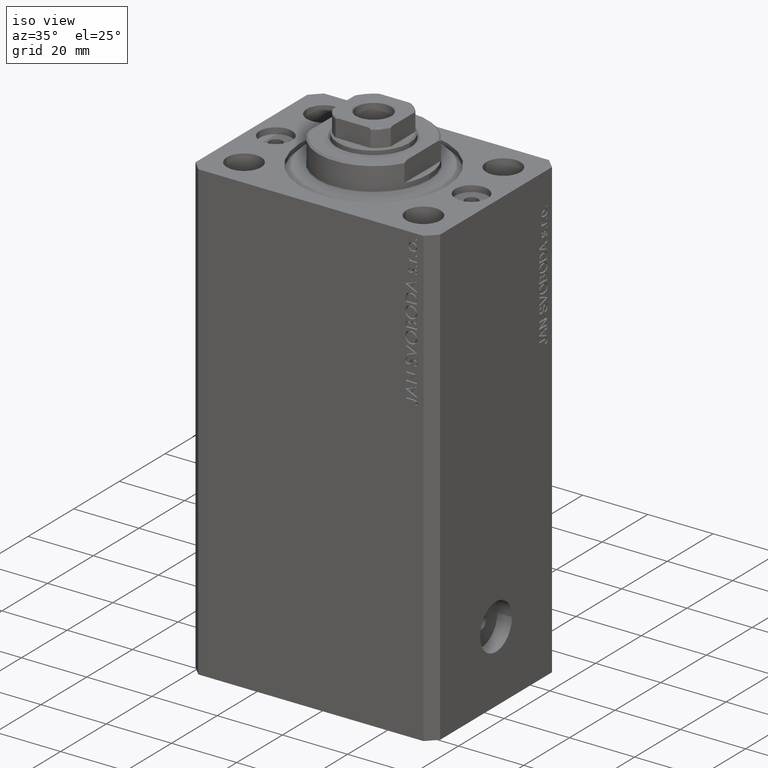
[diagram: clean part render]
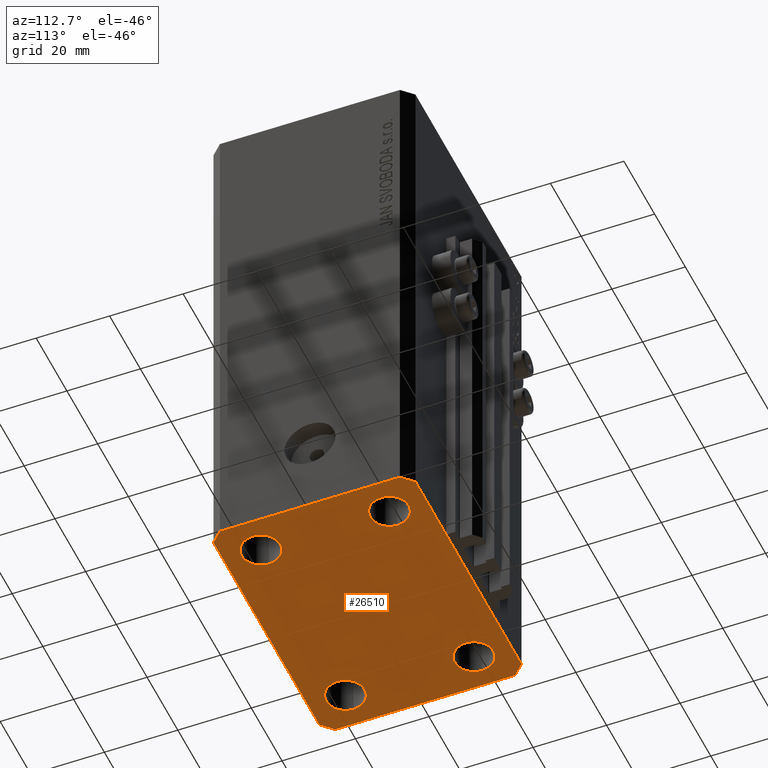
[diagram: tour spotlight — one face highlighted and labeled with its STEP entity id]
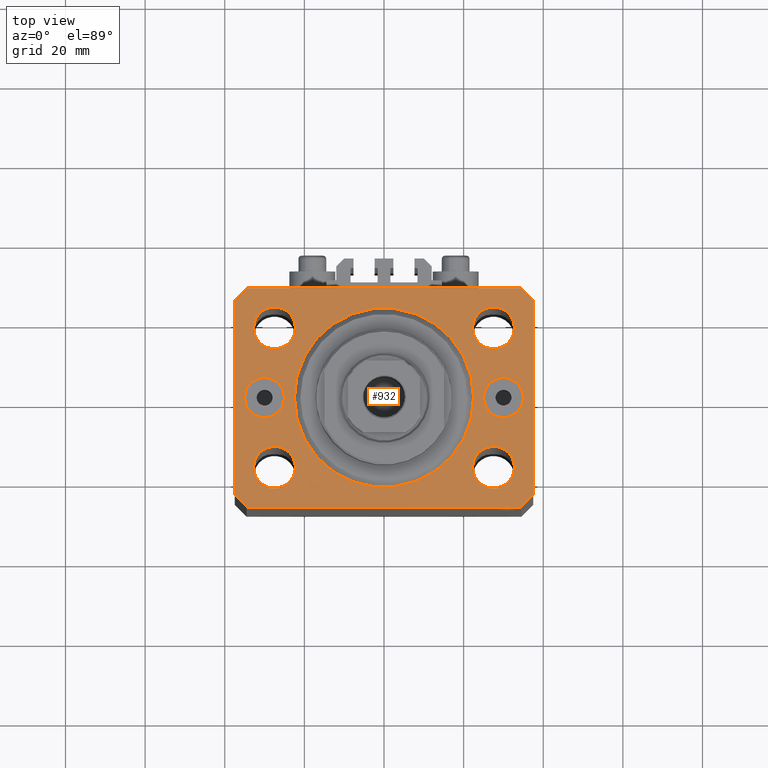
[diagram: tour spotlight — one face highlighted and labeled with its STEP entity id]
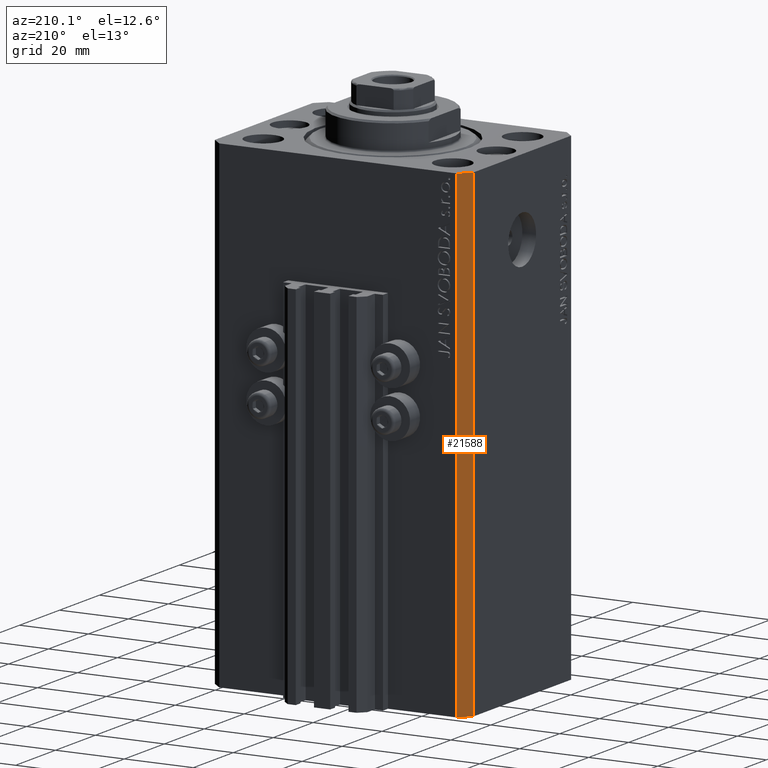
[diagram: tour spotlight — one face highlighted and labeled with its STEP entity id]
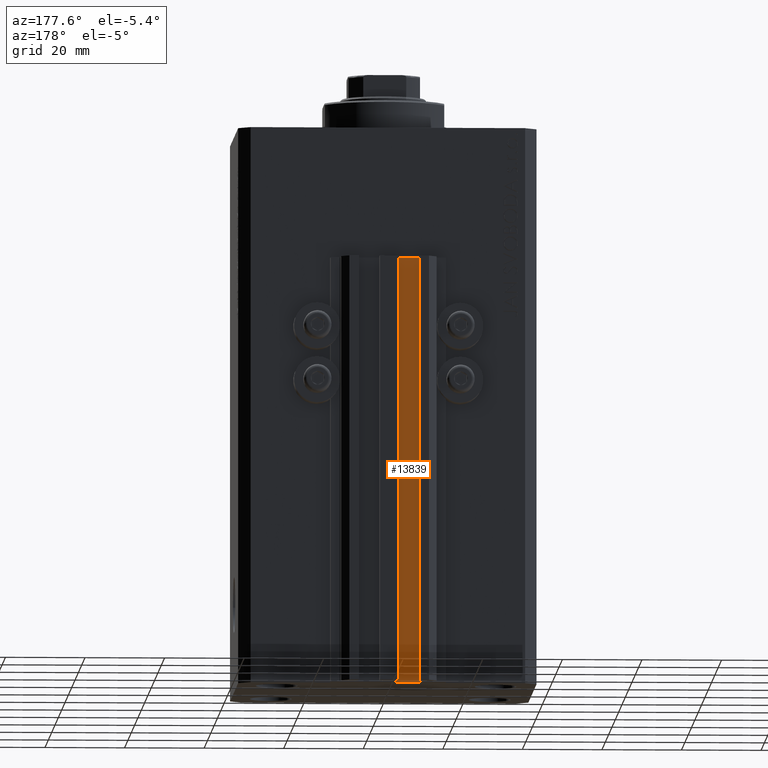
[diagram: tour spotlight — one face highlighted and labeled with its STEP entity id]
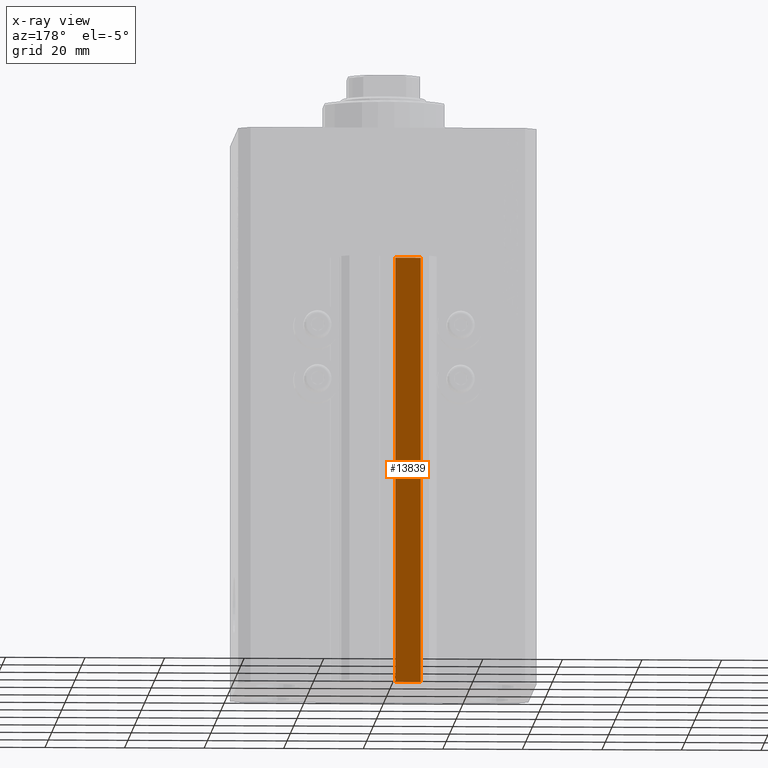
[diagram: x-ray of the same camera — body ghosted, this tour face saturated]
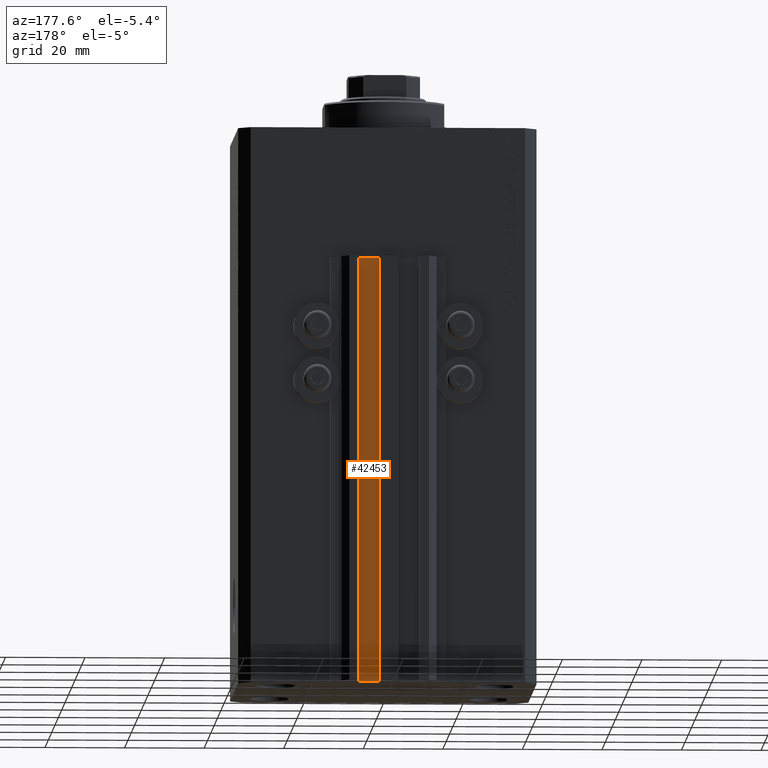
[diagram: tour spotlight — one face highlighted and labeled with its STEP entity id]
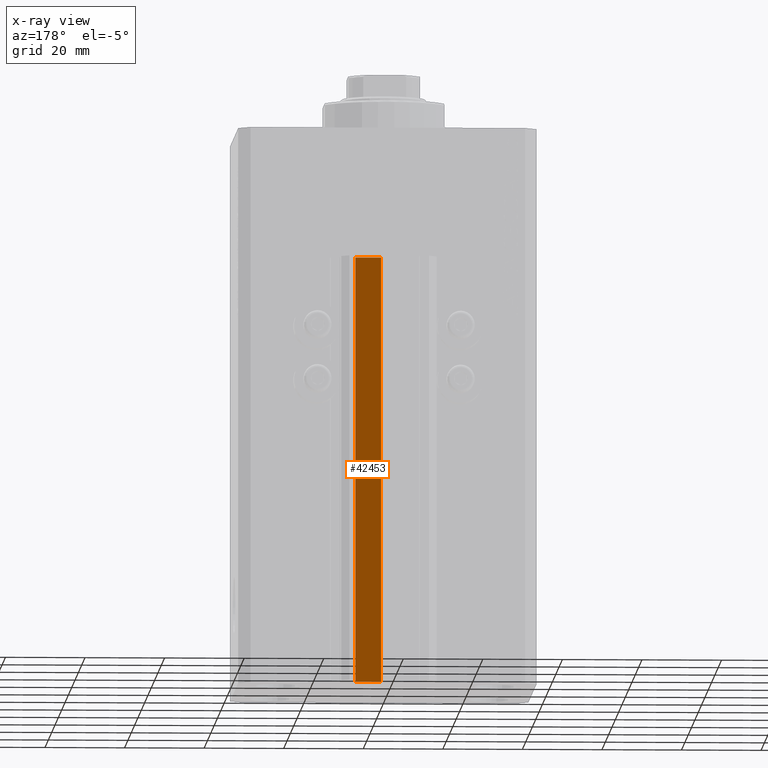
[diagram: x-ray of the same camera — body ghosted, this tour face saturated]
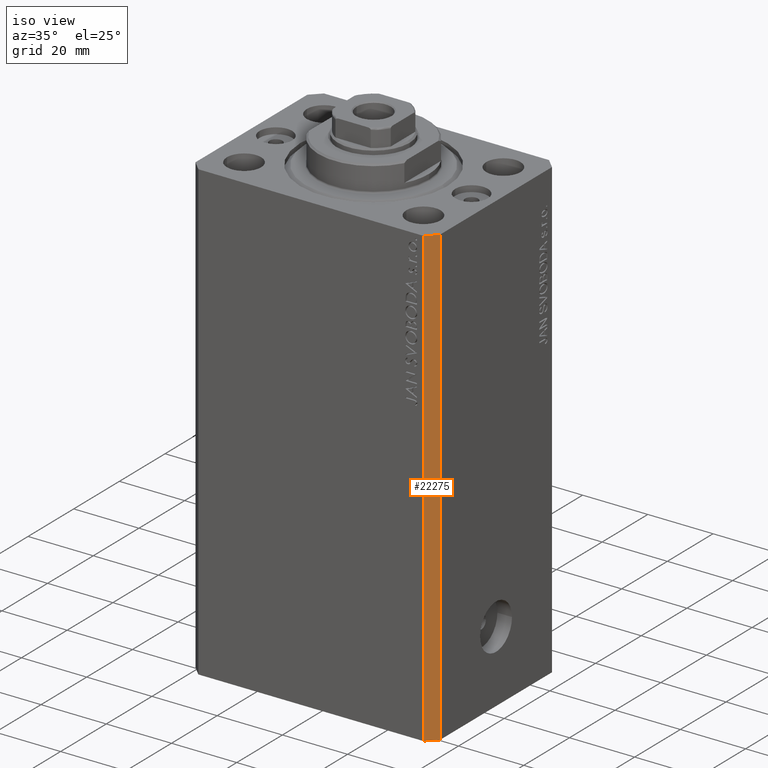
[diagram: tour spotlight — one face highlighted and labeled with its STEP entity id]
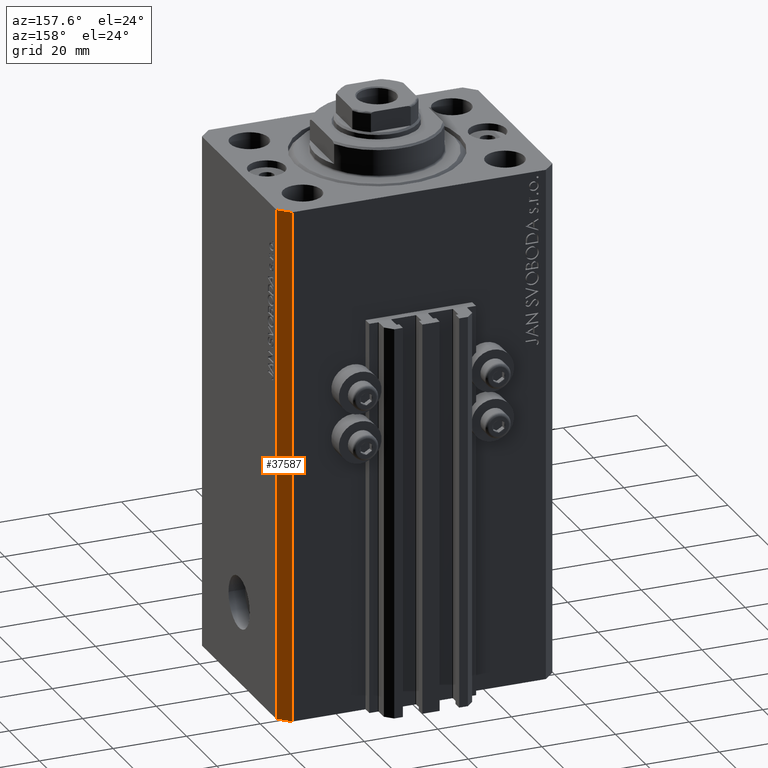
[diagram: tour spotlight — one face highlighted and labeled with its STEP entity id]
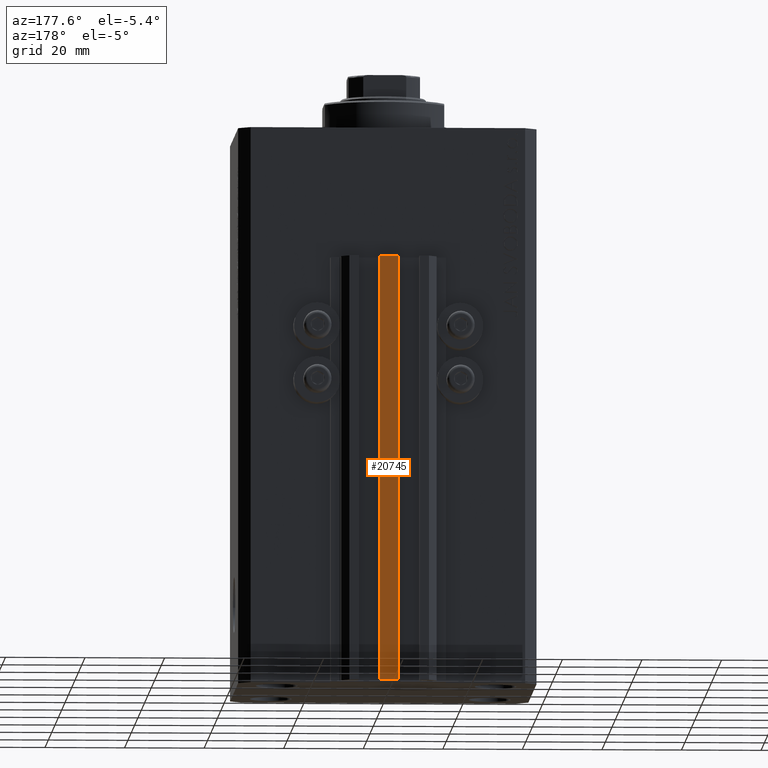
[diagram: tour spotlight — one face highlighted and labeled with its STEP entity id]
A machine part: a face-by-face anatomy tour. The part has 1034 B-rep faces; the first image is the clean iso view, then the 8 largest visible faces are spotlighted one at a time (largest first), each with its STEP entity span.

Face 1 — auxiliary view, entity #26510. In plain terms, the highlighted planar face has unit normal (0, 0, 1).
Definition (entity closure, byte-faithful):
#130 = VECTOR ( 'NONE', #16309, 1000.000000000000114 ) ;
#681 = CARTESIAN_POINT ( 'NONE',  ( 32.74999999999999289, -17.50000000000000000, -140.0000000000000000 ) ) ;
#1015 = DIRECTION ( 'NONE',  ( 1.000000000000000000, 0.000000000000000000, 0.000000000000000000 ) ) ;
#1545 = AXIS2_PLACEMENT_3D ( 'NONE', #2323, #31465, #16898 ) ;
#2134 = VERTEX_POINT ( 'NONE', #681 ) ;
#2263 = ORIENTED_EDGE ( 'NONE', *, *, #17287, .F. ) ;
#2323 = CARTESIAN_POINT ( 'NONE',  ( -27.49999999999999289, -17.50000000000000000, -140.0000000000000000 ) ) ;
#2530 = CARTESIAN_POINT ( 'NONE',  ( -27.50000000000000000, 17.49999999999999645, -140.0000000000000000 ) ) ;
#2712 = VECTOR ( 'NONE', #35094, 1000.000000000000000 ) ;
#2758 = AXIS2_PLACEMENT_3D ( 'NONE', #37988, #37522, #40887 ) ;
#2894 = DIRECTION ( 'NONE',  ( -0.7071067811865471286, -0.7071067811865479058, 0.000000000000000000 ) ) ;
#3105 = VERTEX_POINT ( 'NONE', #16651 ) ;
#3385 = ORIENTED_EDGE ( 'NONE', *, *, #27686, .F. ) ;
#3752 = CARTESIAN_POINT ( 'NONE',  ( 22.25000000000000000, 17.49999999999999289, -140.0000000000000000 ) ) ;
#4532 = CARTESIAN_POINT ( 'NONE',  ( -27.49999999999999289, -17.50000000000000000, -140.0000000000000000 ) ) ;
#4918 = VECTOR ( 'NONE', #42825, 1000.000000000000114 ) ;
#4997 = CIRCLE ( 'NONE', #20262, 5.250000000000000888 ) ;
#5123 = CARTESIAN_POINT ( 'NONE',  ( -37.49999999999999289, 24.50000000000000000, -140.0000000000000000 ) ) ;
#5457 = VECTOR ( 'NONE', #19387, 1000.000000000000000 ) ;
#5556 = VERTEX_POINT ( 'NONE', #15775 ) ;
#5666 = VERTEX_POINT ( 'NONE', #32692 ) ;
#6363 = EDGE_CURVE ( 'NONE', #2134, #38453, #32796, .T. ) ;
#6672 = CARTESIAN_POINT ( 'NONE',  ( 37.49999999999999289, -24.50000000000000000, -140.0000000000000000 ) ) ;
#6913 = ORIENTED_EDGE ( 'NONE', *, *, #45665, .F. ) ;
#7319 = FACE_BOUND ( 'NONE', #7446, .T. ) ;
#7446 = EDGE_LOOP ( 'NONE', ( #25298, #23583 ) ) ;
#8443 = CARTESIAN_POINT ( 'NONE',  ( -34.49999999999998579, -27.49999999999999645, -140.0000000000000000 ) ) ;
#8831 = AXIS2_PLACEMENT_3D ( 'NONE', #40880, #19153, #1015 ) ;
#9429 = CARTESIAN_POINT ( 'NONE',  ( 34.50000000000056843, 27.50000000000000000, -140.0000000000000000 ) ) ;
#9964 = EDGE_CURVE ( 'NONE', #25577, #28131, #32081, .T. ) ;
#10400 = DIRECTION ( 'NONE',  ( -0.000000000000000000, -0.000000000000000000, -1.000000000000000000 ) ) ;
#10580 = DIRECTION ( 'NONE',  ( 0.7071067811865483499, -0.7071067811865466846, 0.000000000000000000 ) ) ;
#10651 = CARTESIAN_POINT ( 'NONE',  ( -22.25000000000000000, 17.49999999999999645, -140.0000000000000000 ) ) ;
#10730 = DIRECTION ( 'NONE',  ( 1.000000000000000000, 0.000000000000000000, 0.000000000000000000 ) ) ;
#10948 = EDGE_CURVE ( 'NONE', #26668, #19415, #44924, .T. ) ;
#11380 = ORIENTED_EDGE ( 'NONE', *, *, #35499, .F. ) ;
#12084 = ORIENTED_EDGE ( 'NONE', *, *, #9964, .F. ) ;
#12222 = CARTESIAN_POINT ( 'NONE',  ( 34.50000000000056843, 27.50000000000000000, -140.0000000000000000 ) ) ;
#12468 = ORIENTED_EDGE ( 'NONE', *, *, #18609, .F. ) ;
#14195 = DIRECTION ( 'NONE',  ( -0.000000000000000000, -0.000000000000000000, -1.000000000000000000 ) ) ;
#14468 = LINE ( 'NONE', #43342, #39951 ) ;
#14493 = PLANE ( 'NONE',  #24602 ) ;
#15207 = FACE_BOUND ( 'NONE', #36814, .T. ) ;
#15354 = CARTESIAN_POINT ( 'NONE',  ( -34.49999999999999289, 27.50000000000000000, -140.0000000000000000 ) ) ;
#15775 = CARTESIAN_POINT ( 'NONE',  ( -32.75000000000000000, 17.49999999999999645, -140.0000000000000000 ) ) ;
#16309 = DIRECTION ( 'NONE',  ( -0.7071067811865364705, 0.7071067811865584529, 0.000000000000000000 ) ) ;
#16545 = LINE ( 'NONE', #30870, #130 ) ;
#16651 = CARTESIAN_POINT ( 'NONE',  ( 34.49999999999999289, -27.49999999999999645, -140.0000000000000000 ) ) ;
#16803 = DIRECTION ( 'NONE',  ( -0.000000000000000000, -0.000000000000000000, -1.000000000000000000 ) ) ;
#16898 = DIRECTION ( 'NONE',  ( 1.000000000000000000, 0.000000000000000000, 0.000000000000000000 ) ) ;
#16929 = EDGE_LOOP ( 'NONE', ( #22956, #28526 ) ) ;
#17262 = CIRCLE ( 'NONE', #25643, 5.250000000000000888 ) ;
#17287 = EDGE_CURVE ( 'NONE', #43726, #36492, #29370, .T. ) ;
#17331 = DIRECTION ( 'NONE',  ( 1.000000000000000000, 0.000000000000000000, 0.000000000000000000 ) ) ;
#18272 = EDGE_CURVE ( 'NONE', #38453, #2134, #4997, .T. ) ;
#18557 = FACE_OUTER_BOUND ( 'NONE', #20350, .T. ) ;
#18609 = EDGE_CURVE ( 'NONE', #38718, #27340, #35540, .T. ) ;
#19153 = DIRECTION ( 'NONE',  ( -0.000000000000000000, -0.000000000000000000, -1.000000000000000000 ) ) ;
#19387 = DIRECTION ( 'NONE',  ( -1.000000000000000000, 0.000000000000000000, 0.000000000000000000 ) ) ;
#19415 = VERTEX_POINT ( 'NONE', #15354 ) ;
#19499 = EDGE_CURVE ( 'NONE', #5556, #30720, #43917, .T. ) ;
#20262 = AXIS2_PLACEMENT_3D ( 'NONE', #24215, #16803, #23730 ) ;
#20350 = EDGE_LOOP ( 'NONE', ( #44083, #41867, #20518, #11380, #3385, #12084, #23902, #25654 ) ) ;
#20518 = ORIENTED_EDGE ( 'NONE', *, *, #38284, .F. ) ;
#20704 = EDGE_CURVE ( 'NONE', #36492, #43726, #41175, .T. ) ;
#20963 = CARTESIAN_POINT ( 'NONE',  ( -22.24999999999999289, -17.50000000000000000, -140.0000000000000000 ) ) ;
#21038 = CARTESIAN_POINT ( 'NONE',  ( -34.49999999999999289, 27.50000000000000000, -140.0000000000000000 ) ) ;
#21724 = CARTESIAN_POINT ( 'NONE',  ( -34.49999999999998579, -27.49999999999999645, -140.0000000000000000 ) ) ;
#21877 = DIRECTION ( 'NONE',  ( 0.000000000000000000, -1.000000000000000000, 0.000000000000000000 ) ) ;
#22956 = ORIENTED_EDGE ( 'NONE', *, *, #43984, .F. ) ;
#23016 = DIRECTION ( 'NONE',  ( 1.000000000000000000, 0.000000000000000000, 0.000000000000000000 ) ) ;
#23583 = ORIENTED_EDGE ( 'NONE', *, *, #18272, .F. ) ;
#23730 = DIRECTION ( 'NONE',  ( 1.000000000000000000, 0.000000000000000000, 0.000000000000000000 ) ) ;
#23902 = ORIENTED_EDGE ( 'NONE', *, *, #34532, .F. ) ;
#24215 = CARTESIAN_POINT ( 'NONE',  ( 27.49999999999999289, -17.50000000000000000, -140.0000000000000000 ) ) ;
#24602 = AXIS2_PLACEMENT_3D ( 'NONE', #28813, #25719, #36448 ) ;
#24729 = ORIENTED_EDGE ( 'NONE', *, *, #20704, .F. ) ;
#25066 = CARTESIAN_POINT ( 'NONE',  ( 22.24999999999999289, -17.50000000000000000, -140.0000000000000000 ) ) ;
#25298 = ORIENTED_EDGE ( 'NONE', *, *, #6363, .F. ) ;
#25577 = VERTEX_POINT ( 'NONE', #36034 ) ;
#25643 = AXIS2_PLACEMENT_3D ( 'NONE', #2530, #10400, #17331 ) ;
#25654 = ORIENTED_EDGE ( 'NONE', *, *, #45486, .F. ) ;
#25719 = DIRECTION ( 'NONE',  ( 0.000000000000000000, 0.000000000000000000, 1.000000000000000000 ) ) ;
#25923 = AXIS2_PLACEMENT_3D ( 'NONE', #44380, #29593, #10730 ) ;
#26125 = CARTESIAN_POINT ( 'NONE',  ( 27.50000000000000000, 17.49999999999999289, -140.0000000000000000 ) ) ;
#26510 = ADVANCED_FACE ( 'NONE', ( #29051, #7319, #15207, #44086, #18557 ), #14493, .F. ) ;
#26668 = VERTEX_POINT ( 'NONE', #9429 ) ;
#27031 = EDGE_CURVE ( 'NONE', #45798, #26668, #16545, .T. ) ;
#27340 = VERTEX_POINT ( 'NONE', #38321 ) ;
#27686 = EDGE_CURVE ( 'NONE', #28131, #3105, #41147, .T. ) ;
#28131 = VERTEX_POINT ( 'NONE', #21724 ) ;
#28169 = LINE ( 'NONE', #6672, #2712 ) ;
#28526 = ORIENTED_EDGE ( 'NONE', *, *, #19499, .F. ) ;
#28813 = CARTESIAN_POINT ( 'NONE',  ( 0.000000000000000000, 0.000000000000000000, -140.0000000000000000 ) ) ;
#29051 = FACE_BOUND ( 'NONE', #46313, .T. ) ;
#29370 = CIRCLE ( 'NONE', #39284, 5.250000000000000888 ) ;
#29593 = DIRECTION ( 'NONE',  ( -0.000000000000000000, -0.000000000000000000, -1.000000000000000000 ) ) ;
#30720 = VERTEX_POINT ( 'NONE', #10651 ) ;
#30870 = CARTESIAN_POINT ( 'NONE',  ( 37.50000000000051870, 24.49999999999995381, -140.0000000000000000 ) ) ;
#31465 = DIRECTION ( 'NONE',  ( -0.000000000000000000, -0.000000000000000000, -1.000000000000000000 ) ) ;
#31849 = CARTESIAN_POINT ( 'NONE',  ( -37.49999999999999289, -24.50000000000000000, -140.0000000000000000 ) ) ;
#32081 = LINE ( 'NONE', #31849, #38993 ) ;
#32692 = CARTESIAN_POINT ( 'NONE',  ( 37.49999999999999289, -24.50000000000000000, -140.0000000000000000 ) ) ;
#32796 = CIRCLE ( 'NONE', #25923, 5.250000000000000888 ) ;
#33664 = DIRECTION ( 'NONE',  ( 1.000000000000000000, 0.000000000000000000, 0.000000000000000000 ) ) ;
#34532 = EDGE_CURVE ( 'NONE', #35300, #25577, #14468, .T. ) ;
#35094 = DIRECTION ( 'NONE',  ( 1.076236605503979380E-14, 1.000000000000000000, 0.000000000000000000 ) ) ;
#35300 = VERTEX_POINT ( 'NONE', #5123 ) ;
#35499 = EDGE_CURVE ( 'NONE', #3105, #5666, #45931, .T. ) ;
#35540 = CIRCLE ( 'NONE', #8831, 5.250000000000000888 ) ;
#36034 = CARTESIAN_POINT ( 'NONE',  ( -37.49999999999999289, -24.50000000000000000, -140.0000000000000000 ) ) ;
#36448 = DIRECTION ( 'NONE',  ( 1.000000000000000000, 0.000000000000000000, -0.000000000000000000 ) ) ;
#36492 = VERTEX_POINT ( 'NONE', #38004 ) ;
#36556 = CARTESIAN_POINT ( 'NONE',  ( 37.50000000000051870, 24.49999999999995381, -140.0000000000000000 ) ) ;
#36687 = VECTOR ( 'NONE', #23016, 1000.000000000000000 ) ;
#36814 = EDGE_LOOP ( 'NONE', ( #6913, #12468 ) ) ;
#37522 = DIRECTION ( 'NONE',  ( -0.000000000000000000, -0.000000000000000000, -1.000000000000000000 ) ) ;
#37988 = CARTESIAN_POINT ( 'NONE',  ( -27.50000000000000000, 17.49999999999999645, -140.0000000000000000 ) ) ;
#38004 = CARTESIAN_POINT ( 'NONE',  ( -32.74999999999999289, -17.50000000000000000, -140.0000000000000000 ) ) ;
#38284 = EDGE_CURVE ( 'NONE', #5666, #45798, #28169, .T. ) ;
#38321 = CARTESIAN_POINT ( 'NONE',  ( 32.75000000000000000, 17.49999999999999289, -140.0000000000000000 ) ) ;
#38453 = VERTEX_POINT ( 'NONE', #25066 ) ;
#38718 = VERTEX_POINT ( 'NONE', #3752 ) ;
#38993 = VECTOR ( 'NONE', #10580, 1000.000000000000000 ) ;
#39284 = AXIS2_PLACEMENT_3D ( 'NONE', #4532, #44628, #33664 ) ;
#39951 = VECTOR ( 'NONE', #21877, 1000.000000000000000 ) ;
#40159 = VECTOR ( 'NONE', #2894, 1000.000000000000000 ) ;
#40880 = CARTESIAN_POINT ( 'NONE',  ( 27.50000000000000000, 17.49999999999999289, -140.0000000000000000 ) ) ;
#40887 = DIRECTION ( 'NONE',  ( 1.000000000000000000, 0.000000000000000000, 0.000000000000000000 ) ) ;
#41147 = LINE ( 'NONE', #8443, #36687 ) ;
#41175 = CIRCLE ( 'NONE', #1545, 5.250000000000000888 ) ;
#41867 = ORIENTED_EDGE ( 'NONE', *, *, #27031, .F. ) ;
#42746 = LINE ( 'NONE', #21038, #40159 ) ;
#42825 = DIRECTION ( 'NONE',  ( 0.7071067811865474617, 0.7071067811865474617, 0.000000000000000000 ) ) ;
#43237 = CIRCLE ( 'NONE', #44002, 5.250000000000000888 ) ;
#43342 = CARTESIAN_POINT ( 'NONE',  ( -37.49999999999999289, 24.50000000000000000, -140.0000000000000000 ) ) ;
#43546 = DIRECTION ( 'NONE',  ( 1.000000000000000000, 0.000000000000000000, 0.000000000000000000 ) ) ;
#43726 = VERTEX_POINT ( 'NONE', #20963 ) ;
#43917 = CIRCLE ( 'NONE', #2758, 5.250000000000000888 ) ;
#43984 = EDGE_CURVE ( 'NONE', #30720, #5556, #17262, .T. ) ;
#44002 = AXIS2_PLACEMENT_3D ( 'NONE', #26125, #14195, #43546 ) ;
#44083 = ORIENTED_EDGE ( 'NONE', *, *, #10948, .F. ) ;
#44086 = FACE_BOUND ( 'NONE', #16929, .T. ) ;
#44380 = CARTESIAN_POINT ( 'NONE',  ( 27.49999999999999289, -17.50000000000000000, -140.0000000000000000 ) ) ;
#44628 = DIRECTION ( 'NONE',  ( -0.000000000000000000, -0.000000000000000000, -1.000000000000000000 ) ) ;
#44924 = LINE ( 'NONE', #12222, #5457 ) ;
#45486 = EDGE_CURVE ( 'NONE', #19415, #35300, #42746, .T. ) ;
#45665 = EDGE_CURVE ( 'NONE', #27340, #38718, #43237, .T. ) ;
#45798 = VERTEX_POINT ( 'NONE', #36556 ) ;
#45931 = LINE ( 'NONE', #46414, #4918 ) ;
#46313 = EDGE_LOOP ( 'NONE', ( #2263, #24729 ) ) ;
#46414 = CARTESIAN_POINT ( 'NONE',  ( 34.49999999999999289, -27.49999999999999645, -140.0000000000000000 ) ) ;

Face 2 — top view, entity #932. In plain terms, the highlighted planar face has unit normal (0, 0, 1).
Definition (entity closure, byte-faithful):
#199 = CIRCLE ( 'NONE', #6290, 22.50000000000000355 ) ;
#596 = ORIENTED_EDGE ( 'NONE', *, *, #25619, .F. ) ;
#742 = ORIENTED_EDGE ( 'NONE', *, *, #35768, .T. ) ;
#772 = VECTOR ( 'NONE', #6858, 1000.000000000000114 ) ;
#932 = ADVANCED_FACE ( 'NONE', ( #19544, #34109, #44842, #5447, #1402, #30766, #9023, #2103 ), #12138, .T. ) ;
#937 = VERTEX_POINT ( 'NONE', #41262 ) ;
#1088 = CARTESIAN_POINT ( 'NONE',  ( 22.24999999999999289, -17.50000000000000000, 0.000000000000000000 ) ) ;
#1099 = VERTEX_POINT ( 'NONE', #41899 ) ;
#1202 = VECTOR ( 'NONE', #6097, 1000.000000000000114 ) ;
#1402 = FACE_BOUND ( 'NONE', #18053, .T. ) ;
#1558 = ORIENTED_EDGE ( 'NONE', *, *, #34724, .T. ) ;
#1664 = CARTESIAN_POINT ( 'NONE',  ( 22.50000000000000355, 0.000000000000000000, 0.000000000000000000 ) ) ;
#2103 = FACE_BOUND ( 'NONE', #12015, .T. ) ;
#2120 = EDGE_CURVE ( 'NONE', #1099, #22718, #33424, .T. ) ;
#2465 = VERTEX_POINT ( 'NONE', #1088 ) ;
#2629 = EDGE_CURVE ( 'NONE', #17359, #18848, #2955, .T. ) ;
#2678 = CARTESIAN_POINT ( 'NONE',  ( -37.49999999999999289, 24.50000000000000000, 0.000000000000000000 ) ) ;
#2731 = CARTESIAN_POINT ( 'NONE',  ( -27.50000000000000000, 17.49999999999999645, 0.000000000000000000 ) ) ;
#2913 = CARTESIAN_POINT ( 'NONE',  ( -37.49999999999999289, -24.50000000000000000, 0.000000000000000000 ) ) ;
#2955 = CIRCLE ( 'NONE', #37250, 4.999999999999997335 ) ;
#3298 = CARTESIAN_POINT ( 'NONE',  ( 34.50000000000056843, 27.50000000000000000, 0.000000000000000000 ) ) ;
#3315 = CARTESIAN_POINT ( 'NONE',  ( -34.49999999999998579, -27.49999999999999645, 0.000000000000000000 ) ) ;
#3551 = DIRECTION ( 'NONE',  ( 1.000000000000000000, 0.000000000000000000, 0.000000000000000000 ) ) ;
#3619 = ORIENTED_EDGE ( 'NONE', *, *, #10716, .T. ) ;
#3941 = AXIS2_PLACEMENT_3D ( 'NONE', #42295, #27983, #32040 ) ;
#3963 = CARTESIAN_POINT ( 'NONE',  ( -22.50000000000000355, 2.755455298081545172E-15, 0.000000000000000000 ) ) ;
#3983 = ORIENTED_EDGE ( 'NONE', *, *, #20471, .F. ) ;
#4408 = EDGE_CURVE ( 'NONE', #15951, #31161, #43235, .T. ) ;
#4456 = AXIS2_PLACEMENT_3D ( 'NONE', #20508, #24101, #28617 ) ;
#4513 = VECTOR ( 'NONE', #10540, 1000.000000000000000 ) ;
#4590 = AXIS2_PLACEMENT_3D ( 'NONE', #2731, #43057, #28740 ) ;
#4769 = CARTESIAN_POINT ( 'NONE',  ( 25.00000000000000000, 6.123233995736762338E-16, 0.000000000000000000 ) ) ;
#5447 = FACE_BOUND ( 'NONE', #9370, .T. ) ;
#6097 = DIRECTION ( 'NONE',  ( 0.7071067811865474617, 0.7071067811865474617, 0.000000000000000000 ) ) ;
#6290 = AXIS2_PLACEMENT_3D ( 'NONE', #36563, #15091, #22015 ) ;
#6557 = DIRECTION ( 'NONE',  ( 1.000000000000000000, 0.000000000000000000, 0.000000000000000000 ) ) ;
#6627 = EDGE_CURVE ( 'NONE', #19073, #43722, #21198, .T. ) ;
#6858 = DIRECTION ( 'NONE',  ( -0.7071067811865364705, 0.7071067811865584529, 0.000000000000000000 ) ) ;
#7166 = CARTESIAN_POINT ( 'NONE',  ( -34.49999999999999289, 27.50000000000000000, 0.000000000000000000 ) ) ;
#7311 = VECTOR ( 'NONE', #16861, 1000.000000000000000 ) ;
#7799 = AXIS2_PLACEMENT_3D ( 'NONE', #44598, #11675, #19298 ) ;
#8787 = CIRCLE ( 'NONE', #39295, 5.250000000000000888 ) ;
#8883 = CIRCLE ( 'NONE', #10442, 5.250000000000000888 ) ;
#9023 = FACE_BOUND ( 'NONE', #23233, .T. ) ;
#9249 = ORIENTED_EDGE ( 'NONE', *, *, #42737, .F. ) ;
#9370 = EDGE_LOOP ( 'NONE', ( #20843, #32355 ) ) ;
#9758 = EDGE_LOOP ( 'NONE', ( #42181, #31587, #37571, #742, #15375, #13900, #1558, #39215 ) ) ;
#9877 = CARTESIAN_POINT ( 'NONE',  ( 30.00000000000000000, 0.000000000000000000, 0.000000000000000000 ) ) ;
#9996 = CIRCLE ( 'NONE', #3941, 5.250000000000000888 ) ;
#10268 = VERTEX_POINT ( 'NONE', #19500 ) ;
#10323 = ORIENTED_EDGE ( 'NONE', *, *, #2120, .F. ) ;
#10442 = AXIS2_PLACEMENT_3D ( 'NONE', #20677, #46219, #30954 ) ;
#10533 = DIRECTION ( 'NONE',  ( 1.000000000000000000, 0.000000000000000000, 0.000000000000000000 ) ) ;
#10540 = DIRECTION ( 'NONE',  ( 0.000000000000000000, -1.000000000000000000, 0.000000000000000000 ) ) ;
#10702 = LINE ( 'NONE', #3315, #30047 ) ;
#10716 = EDGE_CURVE ( 'NONE', #18848, #17359, #20702, .T. ) ;
#10858 = VECTOR ( 'NONE', #39410, 1000.000000000000000 ) ;
#11277 = VERTEX_POINT ( 'NONE', #1664 ) ;
#11675 = DIRECTION ( 'NONE',  ( 0.000000000000000000, 0.000000000000000000, 1.000000000000000000 ) ) ;
#11683 = CARTESIAN_POINT ( 'NONE',  ( 34.49999999999999289, -27.49999999999999645, 0.000000000000000000 ) ) ;
#11708 = DIRECTION ( 'NONE',  ( 1.076236605503979380E-14, 1.000000000000000000, 0.000000000000000000 ) ) ;
#11781 = VERTEX_POINT ( 'NONE', #33499 ) ;
#12015 = EDGE_LOOP ( 'NONE', ( #3619, #15282 ) ) ;
#12138 = PLANE ( 'NONE',  #29511 ) ;
#12220 = EDGE_CURVE ( 'NONE', #22718, #1099, #46524, .T. ) ;
#12289 = ORIENTED_EDGE ( 'NONE', *, *, #45540, .F. ) ;
#12347 = CARTESIAN_POINT ( 'NONE',  ( -22.25000000000000000, 17.49999999999999645, 0.000000000000000000 ) ) ;
#12410 = VERTEX_POINT ( 'NONE', #3963 ) ;
#13005 = CARTESIAN_POINT ( 'NONE',  ( 0.000000000000000000, 0.000000000000000000, 0.000000000000000000 ) ) ;
#13464 = DIRECTION ( 'NONE',  ( 1.000000000000000000, 0.000000000000000000, 0.000000000000000000 ) ) ;
#13735 = LINE ( 'NONE', #35461, #1202 ) ;
#13827 = EDGE_CURVE ( 'NONE', #38743, #2465, #9996, .T. ) ;
#13900 = ORIENTED_EDGE ( 'NONE', *, *, #38997, .T. ) ;
#14287 = CARTESIAN_POINT ( 'NONE',  ( 37.50000000000051870, 24.49999999999995381, 0.000000000000000000 ) ) ;
#14578 = CARTESIAN_POINT ( 'NONE',  ( 27.50000000000000000, 17.49999999999999289, 0.000000000000000000 ) ) ;
#14650 = CIRCLE ( 'NONE', #7799, 5.250000000000000888 ) ;
#15091 = DIRECTION ( 'NONE',  ( 0.000000000000000000, 0.000000000000000000, 1.000000000000000000 ) ) ;
#15282 = ORIENTED_EDGE ( 'NONE', *, *, #2629, .T. ) ;
#15375 = ORIENTED_EDGE ( 'NONE', *, *, #34928, .T. ) ;
#15686 = CIRCLE ( 'NONE', #37784, 5.250000000000000888 ) ;
#15951 = VERTEX_POINT ( 'NONE', #31365 ) ;
#16003 = VERTEX_POINT ( 'NONE', #32708 ) ;
#16861 = DIRECTION ( 'NONE',  ( -1.000000000000000000, 0.000000000000000000, 0.000000000000000000 ) ) ;
#17359 = VERTEX_POINT ( 'NONE', #4769 ) ;
#17689 = LINE ( 'NONE', #7166, #10858 ) ;
#17839 = EDGE_CURVE ( 'NONE', #43722, #27115, #20440, .T. ) ;
#17845 = VECTOR ( 'NONE', #11708, 1000.000000000000000 ) ;
#18053 = EDGE_LOOP ( 'NONE', ( #39392, #596 ) ) ;
#18172 = CARTESIAN_POINT ( 'NONE',  ( 30.00000000000000000, 0.000000000000000000, 0.000000000000000000 ) ) ;
#18383 = CARTESIAN_POINT ( 'NONE',  ( -24.99999999999999645, 0.000000000000000000, 0.000000000000000000 ) ) ;
#18438 = CARTESIAN_POINT ( 'NONE',  ( -34.49999999999999289, 27.50000000000000000, 0.000000000000000000 ) ) ;
#18848 = VERTEX_POINT ( 'NONE', #41049 ) ;
#19050 = DIRECTION ( 'NONE',  ( 1.000000000000000000, 0.000000000000000000, 0.000000000000000000 ) ) ;
#19073 = VERTEX_POINT ( 'NONE', #14287 ) ;
#19298 = DIRECTION ( 'NONE',  ( 1.000000000000000000, 0.000000000000000000, 0.000000000000000000 ) ) ;
#19500 = CARTESIAN_POINT ( 'NONE',  ( -22.24999999999999289, -17.50000000000000000, 0.000000000000000000 ) ) ;
#19544 = FACE_OUTER_BOUND ( 'NONE', #9758, .T. ) ;
#19559 = CIRCLE ( 'NONE', #46255, 22.50000000000000355 ) ;
#20020 = EDGE_CURVE ( 'NONE', #43785, #937, #8787, .T. ) ;
#20440 = LINE ( 'NONE', #28317, #7311 ) ;
#20471 = EDGE_CURVE ( 'NONE', #30713, #22283, #28989, .T. ) ;
#20486 = CARTESIAN_POINT ( 'NONE',  ( 27.49999999999999289, -17.50000000000000000, 0.000000000000000000 ) ) ;
#20508 = CARTESIAN_POINT ( 'NONE',  ( -30.00000000000000000, 0.000000000000000000, 0.000000000000000000 ) ) ;
#20677 = CARTESIAN_POINT ( 'NONE',  ( -27.49999999999999289, -17.50000000000000000, 0.000000000000000000 ) ) ;
#20702 = CIRCLE ( 'NONE', #42014, 4.999999999999997335 ) ;
#20843 = ORIENTED_EDGE ( 'NONE', *, *, #13827, .F. ) ;
#20961 = DIRECTION ( 'NONE',  ( 1.000000000000000000, 0.000000000000000000, 0.000000000000000000 ) ) ;
#21198 = LINE ( 'NONE', #46499, #772 ) ;
#22015 = DIRECTION ( 'NONE',  ( 1.000000000000000000, 0.000000000000000000, 0.000000000000000000 ) ) ;
#22065 = VERTEX_POINT ( 'NONE', #11683 ) ;
#22140 = EDGE_LOOP ( 'NONE', ( #3983, #25300 ) ) ;
#22283 = VERTEX_POINT ( 'NONE', #38139 ) ;
#22410 = DIRECTION ( 'NONE',  ( 0.000000000000000000, 0.000000000000000000, 1.000000000000000000 ) ) ;
#22461 = CARTESIAN_POINT ( 'NONE',  ( 37.49999999999999289, -24.50000000000000000, 0.000000000000000000 ) ) ;
#22718 = VERTEX_POINT ( 'NONE', #18383 ) ;
#22934 = EDGE_LOOP ( 'NONE', ( #34389, #12289 ) ) ;
#23233 = EDGE_LOOP ( 'NONE', ( #25622, #10323 ) ) ;
#23596 = CARTESIAN_POINT ( 'NONE',  ( 0.000000000000000000, 0.000000000000000000, 0.000000000000000000 ) ) ;
#23790 = DIRECTION ( 'NONE',  ( 1.000000000000000000, 0.000000000000000000, 0.000000000000000000 ) ) ;
#23802 = EDGE_CURVE ( 'NONE', #22283, #30713, #42816, .T. ) ;
#23838 = DIRECTION ( 'NONE',  ( 0.000000000000000000, 0.000000000000000000, 1.000000000000000000 ) ) ;
#24101 = DIRECTION ( 'NONE',  ( 0.000000000000000000, 0.000000000000000000, 1.000000000000000000 ) ) ;
#25300 = ORIENTED_EDGE ( 'NONE', *, *, #23802, .F. ) ;
#25619 = EDGE_CURVE ( 'NONE', #11781, #10268, #14650, .T. ) ;
#25622 = ORIENTED_EDGE ( 'NONE', *, *, #12220, .F. ) ;
#25962 = AXIS2_PLACEMENT_3D ( 'NONE', #27603, #42393, #23790 ) ;
#25987 = CARTESIAN_POINT ( 'NONE',  ( 27.50000000000000000, 17.49999999999999289, 0.000000000000000000 ) ) ;
#26244 = EDGE_CURVE ( 'NONE', #11277, #12410, #199, .T. ) ;
#26730 = LINE ( 'NONE', #22461, #17845 ) ;
#26798 = LINE ( 'NONE', #2913, #33146 ) ;
#27115 = VERTEX_POINT ( 'NONE', #18438 ) ;
#27405 = DIRECTION ( 'NONE',  ( 1.000000000000000000, 0.000000000000000000, -0.000000000000000000 ) ) ;
#27603 = CARTESIAN_POINT ( 'NONE',  ( -30.00000000000000000, 0.000000000000000000, 0.000000000000000000 ) ) ;
#27983 = DIRECTION ( 'NONE',  ( 0.000000000000000000, 0.000000000000000000, 1.000000000000000000 ) ) ;
#28317 = CARTESIAN_POINT ( 'NONE',  ( 34.50000000000056843, 27.50000000000000000, 0.000000000000000000 ) ) ;
#28563 = CARTESIAN_POINT ( 'NONE',  ( -27.50000000000000000, 17.49999999999999645, 0.000000000000000000 ) ) ;
#28617 = DIRECTION ( 'NONE',  ( 1.000000000000000000, 0.000000000000000000, 0.000000000000000000 ) ) ;
#28740 = DIRECTION ( 'NONE',  ( 1.000000000000000000, 0.000000000000000000, 0.000000000000000000 ) ) ;
#28989 = CIRCLE ( 'NONE', #4590, 5.250000000000000888 ) ;
#29440 = EDGE_CURVE ( 'NONE', #27115, #15951, #17689, .T. ) ;
#29511 = AXIS2_PLACEMENT_3D ( 'NONE', #23596, #23838, #27405 ) ;
#30047 = VECTOR ( 'NONE', #3551, 1000.000000000000000 ) ;
#30713 = VERTEX_POINT ( 'NONE', #12347 ) ;
#30766 = FACE_BOUND ( 'NONE', #22934, .T. ) ;
#30954 = DIRECTION ( 'NONE',  ( 1.000000000000000000, 0.000000000000000000, 0.000000000000000000 ) ) ;
#31161 = VERTEX_POINT ( 'NONE', #31973 ) ;
#31365 = CARTESIAN_POINT ( 'NONE',  ( -37.49999999999999289, 24.50000000000000000, 0.000000000000000000 ) ) ;
#31402 = DIRECTION ( 'NONE',  ( 0.000000000000000000, 0.000000000000000000, 1.000000000000000000 ) ) ;
#31587 = ORIENTED_EDGE ( 'NONE', *, *, #29440, .T. ) ;
#31706 = DIRECTION ( 'NONE',  ( 0.000000000000000000, 0.000000000000000000, 1.000000000000000000 ) ) ;
#31846 = AXIS2_PLACEMENT_3D ( 'NONE', #20486, #42670, #20961 ) ;
#31973 = CARTESIAN_POINT ( 'NONE',  ( -37.49999999999999289, -24.50000000000000000, 0.000000000000000000 ) ) ;
#32040 = DIRECTION ( 'NONE',  ( 1.000000000000000000, 0.000000000000000000, 0.000000000000000000 ) ) ;
#32355 = ORIENTED_EDGE ( 'NONE', *, *, #47160, .F. ) ;
#32595 = CIRCLE ( 'NONE', #31846, 5.250000000000000888 ) ;
#32708 = CARTESIAN_POINT ( 'NONE',  ( -34.49999999999998579, -27.49999999999999645, 0.000000000000000000 ) ) ;
#33146 = VECTOR ( 'NONE', #34901, 1000.000000000000000 ) ;
#33424 = CIRCLE ( 'NONE', #4456, 5.000000000000000888 ) ;
#33499 = CARTESIAN_POINT ( 'NONE',  ( -32.74999999999999289, -17.50000000000000000, 0.000000000000000000 ) ) ;
#34109 = FACE_BOUND ( 'NONE', #22140, .T. ) ;
#34389 = ORIENTED_EDGE ( 'NONE', *, *, #26244, .F. ) ;
#34724 = EDGE_CURVE ( 'NONE', #37537, #19073, #26730, .T. ) ;
#34901 = DIRECTION ( 'NONE',  ( 0.7071067811865483499, -0.7071067811865466846, 0.000000000000000000 ) ) ;
#34928 = EDGE_CURVE ( 'NONE', #16003, #22065, #10702, .T. ) ;
#35014 = DIRECTION ( 'NONE',  ( 0.000000000000000000, 0.000000000000000000, 1.000000000000000000 ) ) ;
#35461 = CARTESIAN_POINT ( 'NONE',  ( 34.49999999999999289, -27.49999999999999645, 0.000000000000000000 ) ) ;
#35768 = EDGE_CURVE ( 'NONE', #31161, #16003, #26798, .T. ) ;
#36032 = CARTESIAN_POINT ( 'NONE',  ( 37.49999999999999289, -24.50000000000000000, 0.000000000000000000 ) ) ;
#36563 = CARTESIAN_POINT ( 'NONE',  ( 0.000000000000000000, 0.000000000000000000, 0.000000000000000000 ) ) ;
#37250 = AXIS2_PLACEMENT_3D ( 'NONE', #18172, #42995, #10533 ) ;
#37537 = VERTEX_POINT ( 'NONE', #36032 ) ;
#37571 = ORIENTED_EDGE ( 'NONE', *, *, #4408, .T. ) ;
#37784 = AXIS2_PLACEMENT_3D ( 'NONE', #14578, #31706, #43139 ) ;
#38139 = CARTESIAN_POINT ( 'NONE',  ( -32.75000000000000000, 17.49999999999999645, 0.000000000000000000 ) ) ;
#38743 = VERTEX_POINT ( 'NONE', #46972 ) ;
#38997 = EDGE_CURVE ( 'NONE', #22065, #37537, #13735, .T. ) ;
#39215 = ORIENTED_EDGE ( 'NONE', *, *, #6627, .T. ) ;
#39295 = AXIS2_PLACEMENT_3D ( 'NONE', #25987, #22410, #19050 ) ;
#39392 = ORIENTED_EDGE ( 'NONE', *, *, #44722, .F. ) ;
#39410 = DIRECTION ( 'NONE',  ( -0.7071067811865471286, -0.7071067811865479058, 0.000000000000000000 ) ) ;
#39764 = AXIS2_PLACEMENT_3D ( 'NONE', #28563, #35014, #43115 ) ;
#40742 = ORIENTED_EDGE ( 'NONE', *, *, #20020, .F. ) ;
#41049 = CARTESIAN_POINT ( 'NONE',  ( 34.99999999999999289, 0.000000000000000000, 0.000000000000000000 ) ) ;
#41262 = CARTESIAN_POINT ( 'NONE',  ( 22.25000000000000000, 17.49999999999999289, 0.000000000000000000 ) ) ;
#41899 = CARTESIAN_POINT ( 'NONE',  ( -34.99999999999999289, 6.123233995736768255E-16, 0.000000000000000000 ) ) ;
#42014 = AXIS2_PLACEMENT_3D ( 'NONE', #9877, #46168, #13464 ) ;
#42181 = ORIENTED_EDGE ( 'NONE', *, *, #17839, .T. ) ;
#42295 = CARTESIAN_POINT ( 'NONE',  ( 27.49999999999999289, -17.50000000000000000, 0.000000000000000000 ) ) ;
#42393 = DIRECTION ( 'NONE',  ( 0.000000000000000000, 0.000000000000000000, 1.000000000000000000 ) ) ;
#42670 = DIRECTION ( 'NONE',  ( 0.000000000000000000, 0.000000000000000000, 1.000000000000000000 ) ) ;
#42737 = EDGE_CURVE ( 'NONE', #937, #43785, #15686, .T. ) ;
#42816 = CIRCLE ( 'NONE', #39764, 5.250000000000000888 ) ;
#42918 = CARTESIAN_POINT ( 'NONE',  ( 32.75000000000000000, 17.49999999999999289, 0.000000000000000000 ) ) ;
#42995 = DIRECTION ( 'NONE',  ( 0.000000000000000000, -0.000000000000000000, -1.000000000000000000 ) ) ;
#43057 = DIRECTION ( 'NONE',  ( 0.000000000000000000, 0.000000000000000000, 1.000000000000000000 ) ) ;
#43115 = DIRECTION ( 'NONE',  ( 1.000000000000000000, 0.000000000000000000, 0.000000000000000000 ) ) ;
#43139 = DIRECTION ( 'NONE',  ( 1.000000000000000000, 0.000000000000000000, 0.000000000000000000 ) ) ;
#43235 = LINE ( 'NONE', #2678, #4513 ) ;
#43722 = VERTEX_POINT ( 'NONE', #3298 ) ;
#43785 = VERTEX_POINT ( 'NONE', #42918 ) ;
#44598 = CARTESIAN_POINT ( 'NONE',  ( -27.49999999999999289, -17.50000000000000000, 0.000000000000000000 ) ) ;
#44722 = EDGE_CURVE ( 'NONE', #10268, #11781, #8883, .T. ) ;
#44842 = FACE_BOUND ( 'NONE', #46085, .T. ) ;
#45540 = EDGE_CURVE ( 'NONE', #12410, #11277, #19559, .T. ) ;
#46085 = EDGE_LOOP ( 'NONE', ( #40742, #9249 ) ) ;
#46168 = DIRECTION ( 'NONE',  ( 0.000000000000000000, -0.000000000000000000, -1.000000000000000000 ) ) ;
#46219 = DIRECTION ( 'NONE',  ( 0.000000000000000000, 0.000000000000000000, 1.000000000000000000 ) ) ;
#46255 = AXIS2_PLACEMENT_3D ( 'NONE', #13005, #31402, #6557 ) ;
#46499 = CARTESIAN_POINT ( 'NONE',  ( 37.50000000000051870, 24.49999999999995381, 0.000000000000000000 ) ) ;
#46524 = CIRCLE ( 'NONE', #25962, 5.000000000000000888 ) ;
#46972 = CARTESIAN_POINT ( 'NONE',  ( 32.74999999999999289, -17.50000000000000000, 0.000000000000000000 ) ) ;
#47160 = EDGE_CURVE ( 'NONE', #2465, #38743, #32595, .T. ) ;

Face 3 — auxiliary view, entity #21588. In plain terms, the highlighted planar face has unit normal (-0.7071, 0.7071, 0).
Definition (entity closure, byte-faithful):
#231 = CARTESIAN_POINT ( 'NONE',  ( -34.49999999999999289, 27.50000000000000000, -140.0000000000000000 ) ) ;
#1184 = LINE ( 'NONE', #4528, #36011 ) ;
#2894 = DIRECTION ( 'NONE',  ( -0.7071067811865471286, -0.7071067811865479058, 0.000000000000000000 ) ) ;
#3635 = PLANE ( 'NONE',  #35879 ) ;
#4528 = CARTESIAN_POINT ( 'NONE',  ( -37.49999999999999289, 24.50000000000000000, -140.0000000000000000 ) ) ;
#5123 = CARTESIAN_POINT ( 'NONE',  ( -37.49999999999999289, 24.50000000000000000, -140.0000000000000000 ) ) ;
#6415 = EDGE_CURVE ( 'NONE', #19415, #27115, #7381, .T. ) ;
#7166 = CARTESIAN_POINT ( 'NONE',  ( -34.49999999999999289, 27.50000000000000000, 0.000000000000000000 ) ) ;
#7381 = LINE ( 'NONE', #231, #38093 ) ;
#10858 = VECTOR ( 'NONE', #39410, 1000.000000000000000 ) ;
#11462 = DIRECTION ( 'NONE',  ( 0.000000000000000000, 0.000000000000000000, 1.000000000000000000 ) ) ;
#14794 = DIRECTION ( 'NONE',  ( 0.000000000000000000, 0.000000000000000000, 1.000000000000000000 ) ) ;
#15354 = CARTESIAN_POINT ( 'NONE',  ( -34.49999999999999289, 27.50000000000000000, -140.0000000000000000 ) ) ;
#15951 = VERTEX_POINT ( 'NONE', #31365 ) ;
#17689 = LINE ( 'NONE', #7166, #10858 ) ;
#18438 = CARTESIAN_POINT ( 'NONE',  ( -34.49999999999999289, 27.50000000000000000, 0.000000000000000000 ) ) ;
#19415 = VERTEX_POINT ( 'NONE', #15354 ) ;
#21038 = CARTESIAN_POINT ( 'NONE',  ( -34.49999999999999289, 27.50000000000000000, -140.0000000000000000 ) ) ;
#21588 = ADVANCED_FACE ( 'NONE', ( #24901 ), #3635, .T. ) ;
#24495 = ORIENTED_EDGE ( 'NONE', *, *, #45486, .T. ) ;
#24901 = FACE_OUTER_BOUND ( 'NONE', #41824, .T. ) ;
#25367 = DIRECTION ( 'NONE',  ( -0.7071067811865471286, -0.7071067811865479058, 0.000000000000000000 ) ) ;
#27115 = VERTEX_POINT ( 'NONE', #18438 ) ;
#28427 = ORIENTED_EDGE ( 'NONE', *, *, #29284, .T. ) ;
#29284 = EDGE_CURVE ( 'NONE', #35300, #15951, #1184, .T. ) ;
#29440 = EDGE_CURVE ( 'NONE', #27115, #15951, #17689, .T. ) ;
#31365 = CARTESIAN_POINT ( 'NONE',  ( -37.49999999999999289, 24.50000000000000000, 0.000000000000000000 ) ) ;
#35300 = VERTEX_POINT ( 'NONE', #5123 ) ;
#35658 = ORIENTED_EDGE ( 'NONE', *, *, #6415, .F. ) ;
#35879 = AXIS2_PLACEMENT_3D ( 'NONE', #39447, #39680, #25367 ) ;
#36011 = VECTOR ( 'NONE', #11462, 1000.000000000000000 ) ;
#38093 = VECTOR ( 'NONE', #14794, 1000.000000000000000 ) ;
#39410 = DIRECTION ( 'NONE',  ( -0.7071067811865471286, -0.7071067811865479058, 0.000000000000000000 ) ) ;
#39447 = CARTESIAN_POINT ( 'NONE',  ( -34.49999999999999289, 27.50000000000000000, -140.0000000000000000 ) ) ;
#39680 = DIRECTION ( 'NONE',  ( -0.7071067811865479058, 0.7071067811865471286, 0.000000000000000000 ) ) ;
#40159 = VECTOR ( 'NONE', #2894, 1000.000000000000000 ) ;
#40632 = ORIENTED_EDGE ( 'NONE', *, *, #29440, .F. ) ;
#41824 = EDGE_LOOP ( 'NONE', ( #40632, #35658, #24495, #28427 ) ) ;
#42746 = LINE ( 'NONE', #21038, #40159 ) ;
#45486 = EDGE_CURVE ( 'NONE', #19415, #35300, #42746, .T. ) ;

Face 4 — auxiliary view, entity #13839. An x-ray twin of the same camera follows (body ghosted, this face saturated) — the face is partly hidden behind the body. In plain terms, the highlighted planar face has unit normal (0, 1, 0).
Definition (entity closure, byte-faithful):
#1585 = VECTOR ( 'NONE', #13436, 1000.000000000000000 ) ;
#2365 = CARTESIAN_POINT ( 'NONE',  ( -1.800000000000000933, 29.50000000000000355, -140.0000000000000000 ) ) ;
#3223 = VERTEX_POINT ( 'NONE', #15435 ) ;
#4827 = CARTESIAN_POINT ( 'NONE',  ( -8.199999999999997513, 29.50000000000000355, -140.0000000000000000 ) ) ;
#5230 = LINE ( 'NONE', #2365, #36135 ) ;
#5526 = DIRECTION ( 'NONE',  ( 0.000000000000000000, 0.000000000000000000, 1.000000000000000000 ) ) ;
#11269 = VERTEX_POINT ( 'NONE', #12633 ) ;
#11350 = VERTEX_POINT ( 'NONE', #30553 ) ;
#12633 = CARTESIAN_POINT ( 'NONE',  ( -8.199999999999997513, 29.50000000000000355, -140.0000000000000000 ) ) ;
#12921 = LINE ( 'NONE', #4827, #15698 ) ;
#13436 = DIRECTION ( 'NONE',  ( -1.000000000000000000, 0.000000000000000000, 0.000000000000000000 ) ) ;
#13839 = ADVANCED_FACE ( 'NONE', ( #23934 ), #46828, .T. ) ;
#15070 = ORIENTED_EDGE ( 'NONE', *, *, #34876, .F. ) ;
#15435 = CARTESIAN_POINT ( 'NONE',  ( -1.800000000000000933, 29.50000000000000355, -33.00000000000000000 ) ) ;
#15682 = DIRECTION ( 'NONE',  ( -1.000000000000000000, 0.000000000000000000, 0.000000000000000000 ) ) ;
#15698 = VECTOR ( 'NONE', #5526, 1000.000000000000000 ) ;
#17476 = DIRECTION ( 'NONE',  ( 0.000000000000000000, 0.000000000000000000, 1.000000000000000000 ) ) ;
#17735 = EDGE_CURVE ( 'NONE', #11269, #42318, #12921, .T. ) ;
#18822 = CARTESIAN_POINT ( 'NONE',  ( -8.199999999999997513, 29.50000000000000355, -33.00000000000000000 ) ) ;
#21393 = EDGE_CURVE ( 'NONE', #11350, #11269, #35640, .T. ) ;
#21427 = EDGE_LOOP ( 'NONE', ( #24949, #15070, #36616, #45066 ) ) ;
#23151 = EDGE_CURVE ( 'NONE', #3223, #42318, #26438, .T. ) ;
#23934 = FACE_OUTER_BOUND ( 'NONE', #21427, .T. ) ;
#24191 = CARTESIAN_POINT ( 'NONE',  ( -1.800000000000000933, 29.50000000000000355, -140.0000000000000000 ) ) ;
#24408 = CARTESIAN_POINT ( 'NONE',  ( -1.800000000000000933, 29.50000000000000355, -140.0000000000000000 ) ) ;
#24949 = ORIENTED_EDGE ( 'NONE', *, *, #23151, .F. ) ;
#26438 = LINE ( 'NONE', #30474, #42788 ) ;
#30474 = CARTESIAN_POINT ( 'NONE',  ( -1.800000000000000933, 29.50000000000000355, -33.00000000000000000 ) ) ;
#30553 = CARTESIAN_POINT ( 'NONE',  ( -1.800000000000000933, 29.50000000000000355, -140.0000000000000000 ) ) ;
#30611 = AXIS2_PLACEMENT_3D ( 'NONE', #24408, #31335, #17476 ) ;
#31335 = DIRECTION ( 'NONE',  ( 0.000000000000000000, 1.000000000000000000, -0.000000000000000000 ) ) ;
#34876 = EDGE_CURVE ( 'NONE', #11350, #3223, #5230, .T. ) ;
#35640 = LINE ( 'NONE', #24191, #1585 ) ;
#36135 = VECTOR ( 'NONE', #38650, 1000.000000000000000 ) ;
#36616 = ORIENTED_EDGE ( 'NONE', *, *, #21393, .T. ) ;
#38650 = DIRECTION ( 'NONE',  ( 0.000000000000000000, 0.000000000000000000, 1.000000000000000000 ) ) ;
#42318 = VERTEX_POINT ( 'NONE', #18822 ) ;
#42788 = VECTOR ( 'NONE', #15682, 1000.000000000000000 ) ;
#45066 = ORIENTED_EDGE ( 'NONE', *, *, #17735, .T. ) ;
#46828 = PLANE ( 'NONE',  #30611 ) ;

Face 5 — auxiliary view, entity #42453. An x-ray twin of the same camera follows (body ghosted, this face saturated) — the face is partly hidden behind the body. In plain terms, the highlighted planar face has unit normal (-0, 1, 0).
Definition (entity closure, byte-faithful):
#836 = VECTOR ( 'NONE', #25050, 1000.000000000000000 ) ;
#967 = EDGE_CURVE ( 'NONE', #7740, #14279, #42442, .T. ) ;
#3751 = CARTESIAN_POINT ( 'NONE',  ( 8.199999999999999289, 29.50000000000000711, -140.0000000000000000 ) ) ;
#6604 = EDGE_CURVE ( 'NONE', #20714, #19772, #43146, .T. ) ;
#7740 = VERTEX_POINT ( 'NONE', #35125 ) ;
#8853 = VECTOR ( 'NONE', #33821, 1000.000000000000000 ) ;
#10679 = VECTOR ( 'NONE', #24075, 1000.000000000000000 ) ;
#10876 = ORIENTED_EDGE ( 'NONE', *, *, #12859, .F. ) ;
#12859 = EDGE_CURVE ( 'NONE', #19772, #14279, #39126, .T. ) ;
#14227 = DIRECTION ( 'NONE',  ( -1.000000000000000000, -1.084202172485504828E-15, 0.000000000000000000 ) ) ;
#14271 = DIRECTION ( 'NONE',  ( 0.000000000000000000, 0.000000000000000000, 1.000000000000000000 ) ) ;
#14279 = VERTEX_POINT ( 'NONE', #19694 ) ;
#17619 = CARTESIAN_POINT ( 'NONE',  ( 1.800000000000000933, 29.50000000000000000, -140.0000000000000000 ) ) ;
#19694 = CARTESIAN_POINT ( 'NONE',  ( 1.800000000000000933, 29.50000000000000000, -33.00000000000000000 ) ) ;
#19772 = VERTEX_POINT ( 'NONE', #31020 ) ;
#20714 = VERTEX_POINT ( 'NONE', #35749 ) ;
#24075 = DIRECTION ( 'NONE',  ( 0.000000000000000000, 0.000000000000000000, 1.000000000000000000 ) ) ;
#24982 = PLANE ( 'NONE',  #33246 ) ;
#25050 = DIRECTION ( 'NONE',  ( -1.000000000000000000, -1.084202172485504828E-15, 0.000000000000000000 ) ) ;
#28824 = ORIENTED_EDGE ( 'NONE', *, *, #967, .T. ) ;
#31020 = CARTESIAN_POINT ( 'NONE',  ( 8.199999999999999289, 29.50000000000000711, -33.00000000000000000 ) ) ;
#32189 = CARTESIAN_POINT ( 'NONE',  ( 8.199999999999999289, 29.50000000000000711, -140.0000000000000000 ) ) ;
#32445 = CARTESIAN_POINT ( 'NONE',  ( 8.199999999999999289, 29.50000000000000711, -33.00000000000000000 ) ) ;
#33246 = AXIS2_PLACEMENT_3D ( 'NONE', #39051, #36182, #14227 ) ;
#33821 = DIRECTION ( 'NONE',  ( -1.000000000000000000, -1.084202172485504828E-15, 0.000000000000000000 ) ) ;
#33921 = ORIENTED_EDGE ( 'NONE', *, *, #6604, .F. ) ;
#34877 = VECTOR ( 'NONE', #14271, 1000.000000000000000 ) ;
#35125 = CARTESIAN_POINT ( 'NONE',  ( 1.800000000000000933, 29.50000000000000000, -140.0000000000000000 ) ) ;
#35749 = CARTESIAN_POINT ( 'NONE',  ( 8.199999999999999289, 29.50000000000000711, -140.0000000000000000 ) ) ;
#36182 = DIRECTION ( 'NONE',  ( -1.084202172485504828E-15, 1.000000000000000000, 0.000000000000000000 ) ) ;
#36456 = LINE ( 'NONE', #3751, #8853 ) ;
#39051 = CARTESIAN_POINT ( 'NONE',  ( 8.199999999999999289, 29.50000000000000711, -140.0000000000000000 ) ) ;
#39126 = LINE ( 'NONE', #32445, #836 ) ;
#40001 = FACE_OUTER_BOUND ( 'NONE', #42542, .T. ) ;
#42442 = LINE ( 'NONE', #17619, #34877 ) ;
#42453 = ADVANCED_FACE ( 'NONE', ( #40001 ), #24982, .T. ) ;
#42542 = EDGE_LOOP ( 'NONE', ( #10876, #33921, #47251, #28824 ) ) ;
#43114 = EDGE_CURVE ( 'NONE', #20714, #7740, #36456, .T. ) ;
#43146 = LINE ( 'NONE', #32189, #10679 ) ;
#47251 = ORIENTED_EDGE ( 'NONE', *, *, #43114, .T. ) ;

Face 6 — iso view, entity #22275. In plain terms, the highlighted planar face has unit normal (0.7071, -0.7071, 0).
Definition (entity closure, byte-faithful):
#343 = ORIENTED_EDGE ( 'NONE', *, *, #17268, .T. ) ;
#1202 = VECTOR ( 'NONE', #6097, 1000.000000000000114 ) ;
#2543 = CARTESIAN_POINT ( 'NONE',  ( 37.49999999999999289, -24.50000000000000000, -140.0000000000000000 ) ) ;
#3105 = VERTEX_POINT ( 'NONE', #16651 ) ;
#3879 = AXIS2_PLACEMENT_3D ( 'NONE', #27171, #28299, #41723 ) ;
#4918 = VECTOR ( 'NONE', #42825, 1000.000000000000114 ) ;
#5666 = VERTEX_POINT ( 'NONE', #32692 ) ;
#5675 = PLANE ( 'NONE',  #3879 ) ;
#6097 = DIRECTION ( 'NONE',  ( 0.7071067811865474617, 0.7071067811865474617, 0.000000000000000000 ) ) ;
#6587 = VECTOR ( 'NONE', #16557, 1000.000000000000000 ) ;
#9212 = DIRECTION ( 'NONE',  ( 0.000000000000000000, 0.000000000000000000, 1.000000000000000000 ) ) ;
#11683 = CARTESIAN_POINT ( 'NONE',  ( 34.49999999999999289, -27.49999999999999645, 0.000000000000000000 ) ) ;
#13735 = LINE ( 'NONE', #35461, #1202 ) ;
#16557 = DIRECTION ( 'NONE',  ( 0.000000000000000000, 0.000000000000000000, 1.000000000000000000 ) ) ;
#16651 = CARTESIAN_POINT ( 'NONE',  ( 34.49999999999999289, -27.49999999999999645, -140.0000000000000000 ) ) ;
#17268 = EDGE_CURVE ( 'NONE', #5666, #37537, #35243, .T. ) ;
#18915 = ORIENTED_EDGE ( 'NONE', *, *, #35499, .T. ) ;
#20133 = CARTESIAN_POINT ( 'NONE',  ( 34.49999999999999289, -27.49999999999999645, -140.0000000000000000 ) ) ;
#22065 = VERTEX_POINT ( 'NONE', #11683 ) ;
#22275 = ADVANCED_FACE ( 'NONE', ( #28537 ), #5675, .T. ) ;
#27171 = CARTESIAN_POINT ( 'NONE',  ( 34.49999999999999289, -27.49999999999999645, -140.0000000000000000 ) ) ;
#28299 = DIRECTION ( 'NONE',  ( 0.7071067811865475727, -0.7071067811865475727, 0.000000000000000000 ) ) ;
#28537 = FACE_OUTER_BOUND ( 'NONE', #34924, .T. ) ;
#32437 = VECTOR ( 'NONE', #9212, 1000.000000000000000 ) ;
#32588 = ORIENTED_EDGE ( 'NONE', *, *, #40563, .F. ) ;
#32692 = CARTESIAN_POINT ( 'NONE',  ( 37.49999999999999289, -24.50000000000000000, -140.0000000000000000 ) ) ;
#34924 = EDGE_LOOP ( 'NONE', ( #44723, #32588, #18915, #343 ) ) ;
#35243 = LINE ( 'NONE', #2543, #32437 ) ;
#35461 = CARTESIAN_POINT ( 'NONE',  ( 34.49999999999999289, -27.49999999999999645, 0.000000000000000000 ) ) ;
#35499 = EDGE_CURVE ( 'NONE', #3105, #5666, #45931, .T. ) ;
#36032 = CARTESIAN_POINT ( 'NONE',  ( 37.49999999999999289, -24.50000000000000000, 0.000000000000000000 ) ) ;
#37537 = VERTEX_POINT ( 'NONE', #36032 ) ;
#38267 = LINE ( 'NONE', #20133, #6587 ) ;
#38997 = EDGE_CURVE ( 'NONE', #22065, #37537, #13735, .T. ) ;
#40563 = EDGE_CURVE ( 'NONE', #3105, #22065, #38267, .T. ) ;
#41723 = DIRECTION ( 'NONE',  ( 0.7071067811865474617, 0.7071067811865474617, 0.000000000000000000 ) ) ;
#42825 = DIRECTION ( 'NONE',  ( 0.7071067811865474617, 0.7071067811865474617, 0.000000000000000000 ) ) ;
#44723 = ORIENTED_EDGE ( 'NONE', *, *, #38997, .F. ) ;
#45931 = LINE ( 'NONE', #46414, #4918 ) ;
#46414 = CARTESIAN_POINT ( 'NONE',  ( 34.49999999999999289, -27.49999999999999645, -140.0000000000000000 ) ) ;

Face 7 — auxiliary view, entity #37587. In plain terms, the highlighted planar face has unit normal (0.7071, 0.7071, 0).
Definition (entity closure, byte-faithful):
#130 = VECTOR ( 'NONE', #16309, 1000.000000000000114 ) ;
#772 = VECTOR ( 'NONE', #6858, 1000.000000000000114 ) ;
#3298 = CARTESIAN_POINT ( 'NONE',  ( 34.50000000000056843, 27.50000000000000000, 0.000000000000000000 ) ) ;
#4820 = CARTESIAN_POINT ( 'NONE',  ( 37.50000000000051870, 24.49999999999995381, -140.0000000000000000 ) ) ;
#5294 = EDGE_CURVE ( 'NONE', #26668, #43722, #16539, .T. ) ;
#6627 = EDGE_CURVE ( 'NONE', #19073, #43722, #21198, .T. ) ;
#6823 = VECTOR ( 'NONE', #27510, 1000.000000000000000 ) ;
#6858 = DIRECTION ( 'NONE',  ( -0.7071067811865364705, 0.7071067811865584529, 0.000000000000000000 ) ) ;
#8773 = CARTESIAN_POINT ( 'NONE',  ( 37.50000000000051870, 24.49999999999995381, -140.0000000000000000 ) ) ;
#9429 = CARTESIAN_POINT ( 'NONE',  ( 34.50000000000056843, 27.50000000000000000, -140.0000000000000000 ) ) ;
#10504 = ORIENTED_EDGE ( 'NONE', *, *, #5294, .T. ) ;
#11115 = LINE ( 'NONE', #4820, #38542 ) ;
#12593 = DIRECTION ( 'NONE',  ( -0.7071067811865364705, 0.7071067811865585639, 0.000000000000000000 ) ) ;
#13007 = ORIENTED_EDGE ( 'NONE', *, *, #6627, .F. ) ;
#14287 = CARTESIAN_POINT ( 'NONE',  ( 37.50000000000051870, 24.49999999999995381, 0.000000000000000000 ) ) ;
#14918 = AXIS2_PLACEMENT_3D ( 'NONE', #8773, #30751, #12593 ) ;
#15666 = EDGE_LOOP ( 'NONE', ( #13007, #18689, #46482, #10504 ) ) ;
#16189 = FACE_OUTER_BOUND ( 'NONE', #15666, .T. ) ;
#16274 = DIRECTION ( 'NONE',  ( 0.000000000000000000, 0.000000000000000000, 1.000000000000000000 ) ) ;
#16309 = DIRECTION ( 'NONE',  ( -0.7071067811865364705, 0.7071067811865584529, 0.000000000000000000 ) ) ;
#16539 = LINE ( 'NONE', #34204, #6823 ) ;
#16545 = LINE ( 'NONE', #30870, #130 ) ;
#18689 = ORIENTED_EDGE ( 'NONE', *, *, #42571, .F. ) ;
#19073 = VERTEX_POINT ( 'NONE', #14287 ) ;
#21198 = LINE ( 'NONE', #46499, #772 ) ;
#26668 = VERTEX_POINT ( 'NONE', #9429 ) ;
#27031 = EDGE_CURVE ( 'NONE', #45798, #26668, #16545, .T. ) ;
#27510 = DIRECTION ( 'NONE',  ( 0.000000000000000000, 0.000000000000000000, 1.000000000000000000 ) ) ;
#29822 = PLANE ( 'NONE',  #14918 ) ;
#30751 = DIRECTION ( 'NONE',  ( 0.7071067811865585639, 0.7071067811865364705, -0.000000000000000000 ) ) ;
#30870 = CARTESIAN_POINT ( 'NONE',  ( 37.50000000000051870, 24.49999999999995381, -140.0000000000000000 ) ) ;
#34204 = CARTESIAN_POINT ( 'NONE',  ( 34.50000000000056843, 27.50000000000000000, -140.0000000000000000 ) ) ;
#36556 = CARTESIAN_POINT ( 'NONE',  ( 37.50000000000051870, 24.49999999999995381, -140.0000000000000000 ) ) ;
#37587 = ADVANCED_FACE ( 'NONE', ( #16189 ), #29822, .T. ) ;
#38542 = VECTOR ( 'NONE', #16274, 1000.000000000000000 ) ;
#42571 = EDGE_CURVE ( 'NONE', #45798, #19073, #11115, .T. ) ;
#43722 = VERTEX_POINT ( 'NONE', #3298 ) ;
#45798 = VERTEX_POINT ( 'NONE', #36556 ) ;
#46482 = ORIENTED_EDGE ( 'NONE', *, *, #27031, .T. ) ;
#46499 = CARTESIAN_POINT ( 'NONE',  ( 37.50000000000051870, 24.49999999999995381, 0.000000000000000000 ) ) ;

Face 8 — auxiliary view, entity #20745. In plain terms, the highlighted planar face has unit normal (0, -1, 0).
Definition (entity closure, byte-faithful):
#2809 = CARTESIAN_POINT ( 'NONE',  ( -2.350000000000003642, 35.50000000000001421, -140.0000000000000000 ) ) ;
#5153 = VERTEX_POINT ( 'NONE', #29700 ) ;
#5515 = CARTESIAN_POINT ( 'NONE',  ( -2.350000000000003642, 35.50000000000001421, -140.0000000000000000 ) ) ;
#5630 = CARTESIAN_POINT ( 'NONE',  ( -2.350000000000003642, 35.50000000000001421, -33.00000000000000000 ) ) ;
#6847 = PLANE ( 'NONE',  #10689 ) ;
#7363 = VECTOR ( 'NONE', #39408, 1000.000000000000000 ) ;
#8502 = LINE ( 'NONE', #41203, #29459 ) ;
#9966 = FACE_OUTER_BOUND ( 'NONE', #27870, .T. ) ;
#10689 = AXIS2_PLACEMENT_3D ( 'NONE', #2809, #35986, #28584 ) ;
#13019 = DIRECTION ( 'NONE',  ( 1.000000000000000000, 0.000000000000000000, 0.000000000000000000 ) ) ;
#17687 = LINE ( 'NONE', #28433, #7363 ) ;
#19775 = CARTESIAN_POINT ( 'NONE',  ( 2.349999999999999645, 35.50000000000001421, -140.0000000000000000 ) ) ;
#20745 = ADVANCED_FACE ( 'NONE', ( #9966 ), #6847, .F. ) ;
#20816 = EDGE_CURVE ( 'NONE', #44387, #30975, #24544, .T. ) ;
#24058 = CARTESIAN_POINT ( 'NONE',  ( -2.350000000000003642, 35.50000000000001421, -140.0000000000000000 ) ) ;
#24437 = VECTOR ( 'NONE', #38847, 1000.000000000000000 ) ;
#24544 = LINE ( 'NONE', #24058, #24437 ) ;
#27355 = LINE ( 'NONE', #5630, #37120 ) ;
#27870 = EDGE_LOOP ( 'NONE', ( #27998, #46196, #35089, #35874 ) ) ;
#27998 = ORIENTED_EDGE ( 'NONE', *, *, #44740, .T. ) ;
#28433 = CARTESIAN_POINT ( 'NONE',  ( 2.349999999999999645, 35.50000000000001421, -140.0000000000000000 ) ) ;
#28584 = DIRECTION ( 'NONE',  ( 0.000000000000000000, -0.000000000000000000, -1.000000000000000000 ) ) ;
#29459 = VECTOR ( 'NONE', #13019, 1000.000000000000000 ) ;
#29700 = CARTESIAN_POINT ( 'NONE',  ( 2.349999999999999645, 35.50000000000001421, -33.00000000000000000 ) ) ;
#30975 = VERTEX_POINT ( 'NONE', #46885 ) ;
#35089 = ORIENTED_EDGE ( 'NONE', *, *, #43156, .F. ) ;
#35874 = ORIENTED_EDGE ( 'NONE', *, *, #20816, .T. ) ;
#35986 = DIRECTION ( 'NONE',  ( 0.000000000000000000, -1.000000000000000000, 0.000000000000000000 ) ) ;
#37120 = VECTOR ( 'NONE', #42620, 1000.000000000000000 ) ;
#38847 = DIRECTION ( 'NONE',  ( 0.000000000000000000, 0.000000000000000000, 1.000000000000000000 ) ) ;
#39408 = DIRECTION ( 'NONE',  ( 0.000000000000000000, 0.000000000000000000, 1.000000000000000000 ) ) ;
#41203 = CARTESIAN_POINT ( 'NONE',  ( -2.350000000000003642, 35.50000000000001421, -140.0000000000000000 ) ) ;
#41223 = VERTEX_POINT ( 'NONE', #19775 ) ;
#42620 = DIRECTION ( 'NONE',  ( 1.000000000000000000, 0.000000000000000000, 0.000000000000000000 ) ) ;
#43156 = EDGE_CURVE ( 'NONE', #44387, #41223, #8502, .T. ) ;
#44387 = VERTEX_POINT ( 'NONE', #5515 ) ;
#44740 = EDGE_CURVE ( 'NONE', #30975, #5153, #27355, .T. ) ;
#45463 = EDGE_CURVE ( 'NONE', #41223, #5153, #17687, .T. ) ;
#46196 = ORIENTED_EDGE ( 'NONE', *, *, #45463, .F. ) ;
#46885 = CARTESIAN_POINT ( 'NONE',  ( -2.350000000000003642, 35.50000000000001421, -33.00000000000000000 ) ) ;